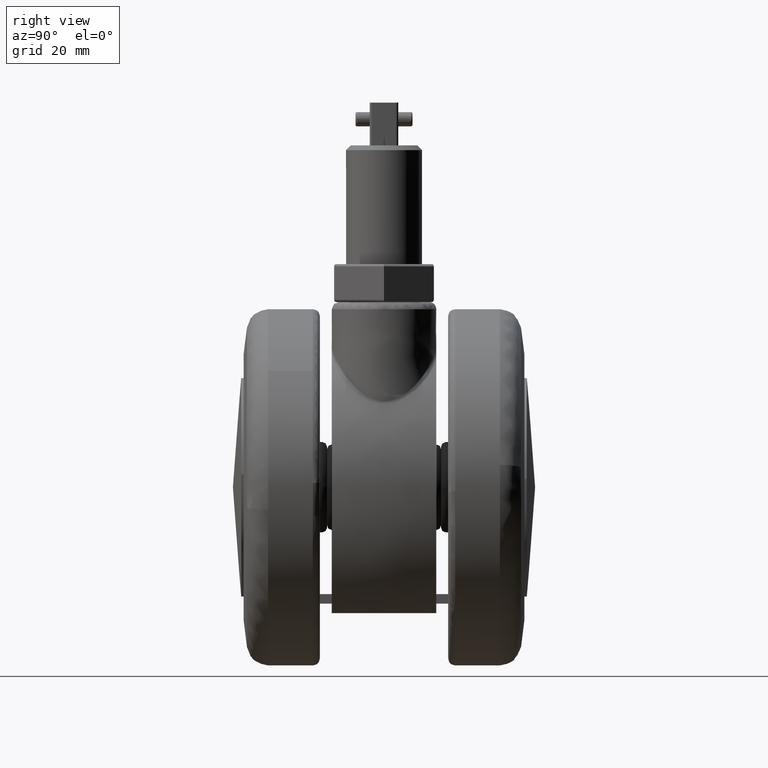
[diagram: clean part render]
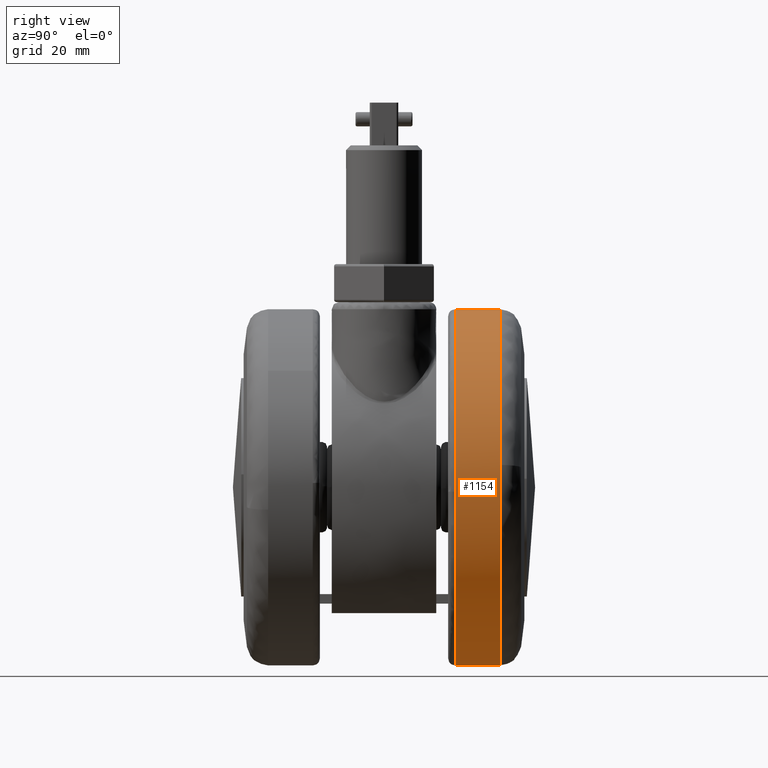
[diagram: same view with one face highlighted and labeled with its STEP entity id]
A machine part, right view. The second image highlights one B-rep face of the part: STEP entity #1154.
In plain terms, the highlighted face is a freeform B-spline surface patch.
Its self-contained STEP definition (entity closure, byte-faithful):
#988=CARTESIAN_POINT('',(-26.874411458421022,24.634318375222875,-26.153699714638627));
#989=CARTESIAN_POINT('',(-26.125903808977434,24.634318375222879,-26.922833824550551));
#990=CARTESIAN_POINT('',(-25.334632785587250,24.634318375222868,-27.647900130379639));
#991=CARTESIAN_POINT('',(2.313267344792394,24.634318375222890,-52.982532915966900));
#992=CARTESIAN_POINT('',(27.647900130379639,24.634318375222868,-25.334632785587250));
#993=CARTESIAN_POINT('',(52.982532915966900,24.634318375222861,2.313267344792394));
#994=CARTESIAN_POINT('',(25.334632785587250,24.634318375222851,27.647900130379639));
#995=CARTESIAN_POINT('',(-2.313267344792394,24.634318375222833,52.982532915966900));
#996=CARTESIAN_POINT('',(-27.647900130379639,24.634318375222851,25.334632785587250));
#997=CARTESIAN_POINT('',(-26.874411458421022,14.759142034843601,-26.153699714638627));
#998=CARTESIAN_POINT('',(-26.125903808977434,14.759142034843601,-26.922833824550562));
#999=CARTESIAN_POINT('',(-25.334632785587250,14.759142034843601,-27.647900130379650));
#1000=CARTESIAN_POINT('',(2.313267344792394,14.759142034843599,-52.982532915966900));
#1001=CARTESIAN_POINT('',(27.647900130379639,14.759142034843601,-25.334632785587250));
#1002=CARTESIAN_POINT('',(52.982532915966900,14.759142034843586,2.313267344792391));
#1003=CARTESIAN_POINT('',(25.334632785587250,14.759142034843579,27.647900130379639));
#1004=CARTESIAN_POINT('',(-2.313267344792394,14.759142034843570,52.982532915966878));
#1005=CARTESIAN_POINT('',(-27.647900130379639,14.759142034843579,25.334632785587250));
#1013=(BOUNDED_SURFACE()B_SPLINE_SURFACE(2,1,((#988,#997),(#989,#998),(#990,#999),(#991,#1000),(#992,#1001),(#993,#1002),(#994,#1003),(#995,#1004),(#996,#1005)),.UNSPECIFIED.,.F.,.F.,.U.)B_SPLINE_SURFACE_WITH_KNOTS((3,2,2,2,3),(2,2),(0.0,2.485281374238573,64.617315730202819,126.749350086167100,188.881384442131290),(0.0,9.875176340379278),.UNSPECIFIED.)GEOMETRIC_REPRESENTATION_ITEM()RATIONAL_B_SPLINE_SURFACE(((0.977505800795127,0.977505800795127),(0.988284271247462,0.988284271247462),(1.0,1.0),(0.707106781186548,0.707106781186548),(1.0,1.0),(0.707106781186548,0.707106781186548),(1.0,1.0),(0.707106781186548,0.707106781186548),(1.0,1.0)))REPRESENTATION_ITEM('')SURFACE());
#1014=CARTESIAN_POINT('',(0.0,15.0,-37.499999999999993));
#1015=VERTEX_POINT('',#1014);
#1016=CARTESIAN_POINT('',(-26.874411985650529,14.999999999999980,-26.153699172880341));
#1017=VERTEX_POINT('',#1016);
#1018=CARTESIAN_POINT('',(0.0,15.0,-37.499999999999993));
#1019=CARTESIAN_POINT('',(-15.832394517610302,15.000000000000005,-37.500000000000000));
#1020=CARTESIAN_POINT('',(-26.874411985650529,14.999999999999986,-26.153699172880344));
#1028=(BOUNDED_CURVE()B_SPLINE_CURVE(2,(#1018,#1019,#1020),.UNSPECIFIED.,.F.,.U.)B_SPLINE_CURVE_WITH_KNOTS((3,3),(0.500000000000000,0.627050653944054),.UNSPECIFIED.)CURVE()GEOMETRIC_REPRESENTATION_ITEM()RATIONAL_B_SPLINE_CURVE((1.0,0.851150900055888,0.853592804006842))REPRESENTATION_ITEM(''));
#1029=EDGE_CURVE('',#1015,#1017,#1028,.T.);
#1030=ORIENTED_EDGE('',*,*,#1029,.T.);
#1031=CARTESIAN_POINT('',(-26.874412072060789,24.399335000027630,-26.153699084073480));
#1032=VERTEX_POINT('',#1031);
#1033=CARTESIAN_POINT('',(-26.874412072060789,24.399335000027630,-26.153699084073480));
#1034=CARTESIAN_POINT('',(-26.874411985650529,14.999999999999980,-26.153699172880341));
#1035=QUASI_UNIFORM_CURVE('',1,(#1033,#1034),.UNSPECIFIED.,.F.,.U.);
#1036=EDGE_CURVE('',#1032,#1017,#1035,.T.);
#1037=ORIENTED_EDGE('',*,*,#1036,.F.);
#1038=CARTESIAN_POINT('',(0.0,24.399334999999951,-37.499999999999993));
#1039=VERTEX_POINT('',#1038);
#1040=CARTESIAN_POINT('',(0.0,24.399334999999951,-37.499999999999993));
#1041=CARTESIAN_POINT('',(-15.832394663589286,24.399334999999944,-37.499999999999993));
#1042=CARTESIAN_POINT('',(-26.874412072060789,24.399335000027634,-26.153699084073480));
#1050=(BOUNDED_CURVE()B_SPLINE_CURVE(2,(#1040,#1041,#1042),.UNSPECIFIED.,.F.,.U.)B_SPLINE_CURVE_WITH_KNOTS((3,3),(0.500000000000000,0.627050654941128),.UNSPECIFIED.)CURVE()GEOMETRIC_REPRESENTATION_ITEM()RATIONAL_B_SPLINE_CURVE((1.0,0.851150898887743,0.853592804045169))REPRESENTATION_ITEM(''));
#1051=EDGE_CURVE('',#1039,#1032,#1050,.T.);
#1052=ORIENTED_EDGE('',*,*,#1051,.F.);
#1053=CARTESIAN_POINT('',(37.204301299279997,24.399335000079990,4.699996258763650));
#1054=VERTEX_POINT('',#1053);
#1055=CARTESIAN_POINT('',(37.204301299279997,24.399335000079986,4.699996258763650));
#1056=CARTESIAN_POINT('',(37.499999999999993,24.399334999999947,2.359300022115328));
#1057=CARTESIAN_POINT('',(37.500000000000000,24.399334999999951,8.963874E-015));
#1058=CARTESIAN_POINT('',(37.500000000000000,24.399334999999944,-37.500000000000000));
#1059=CARTESIAN_POINT('',(0.0,24.399334999999951,-37.499999999999993));
#1067=(BOUNDED_CURVE()B_SPLINE_CURVE(2,(#1055,#1056,#1057,#1058,#1059),.UNSPECIFIED.,.F.,.U.)B_SPLINE_CURVE_WITH_KNOTS((3,2,3),(0.228321256480619,0.250000000000000,0.500000000000000),.UNSPECIFIED.)CURVE()GEOMETRIC_REPRESENTATION_ITEM()RATIONAL_B_SPLINE_CURVE((0.953608357590138,0.974601772123110,1.0,0.707106781186547,1.0))REPRESENTATION_ITEM(''));
#1068=EDGE_CURVE('',#1054,#1039,#1067,.T.);
#1069=ORIENTED_EDGE('',*,*,#1068,.F.);
#1070=CARTESIAN_POINT('',(0.0,24.399334999999951,37.500000000000007));
#1071=VERTEX_POINT('',#1070);
#1072=CARTESIAN_POINT('',(0.0,24.399334999999951,37.500000000000007));
#1073=CARTESIAN_POINT('',(33.060697213436477,24.399334999999951,37.500000000000014));
#1074=CARTESIAN_POINT('',(37.204301299279997,24.399335000079990,4.699996258763650));
#1082=(BOUNDED_CURVE()B_SPLINE_CURVE(2,(#1072,#1073,#1074),.UNSPECIFIED.,.F.,.U.)B_SPLINE_CURVE_WITH_KNOTS((3,3),(0.0,0.228321256480620),.UNSPECIFIED.)CURVE()GEOMETRIC_REPRESENTATION_ITEM()RATIONAL_B_SPLINE_CURVE((1.0,0.732505009063438,0.953608357590138))REPRESENTATION_ITEM(''));
#1083=EDGE_CURVE('',#1071,#1054,#1082,.T.);
#1084=ORIENTED_EDGE('',*,*,#1083,.F.);
#1085=CARTESIAN_POINT('',(-27.647900846389081,24.399334999999951,25.334632004200039));
#1086=VERTEX_POINT('',#1085);
#1087=CARTESIAN_POINT('',(-27.647900846389099,24.399334999999944,25.334632004200046));
#1088=CARTESIAN_POINT('',(-16.500395540954052,24.399334999999954,37.500000000000007));
#1089=CARTESIAN_POINT('',(0.0,24.399334999999951,37.500000000000007));
#1097=(BOUNDED_CURVE()B_SPLINE_CURVE(2,(#1087,#1088,#1089),.UNSPECIFIED.,.F.,.U.)B_SPLINE_CURVE_WITH_KNOTS((3,3),(0.868415204817622,1.0),.UNSPECIFIED.)CURVE()GEOMETRIC_REPRESENTATION_ITEM()RATIONAL_B_SPLINE_CURVE((0.853959781364576,0.845838823168498,1.0))REPRESENTATION_ITEM(''));
#1098=EDGE_CURVE('',#1086,#1071,#1097,.T.);
#1099=ORIENTED_EDGE('',*,*,#1098,.F.);
#1100=CARTESIAN_POINT('',(-27.647902177363509,14.999999998124821,25.334630551691131));
#1101=VERTEX_POINT('',#1100);
#1102=CARTESIAN_POINT('',(-27.647900846389081,24.399334999999951,25.334632004200039));
#1103=CARTESIAN_POINT('',(-27.647902177363509,14.999999998124821,25.334630551691131));
#1104=QUASI_UNIFORM_CURVE('',1,(#1102,#1103),.UNSPECIFIED.,.F.,.U.);
#1105=EDGE_CURVE('',#1086,#1101,#1104,.T.);
#1106=ORIENTED_EDGE('',*,*,#1105,.T.);
#1107=CARTESIAN_POINT('',(0.0,15.0,37.500000000000007));
#1108=VERTEX_POINT('',#1107);
#1109=CARTESIAN_POINT('',(-27.647902177363509,14.999999998124821,25.334630551691138));
#1110=CARTESIAN_POINT('',(-16.500396716711517,15.000000000000005,37.500000000000000));
#1111=CARTESIAN_POINT('',(0.0,15.0,37.500000000000007));
#1119=(BOUNDED_CURVE()B_SPLINE_CURVE(2,(#1109,#1110,#1111),.UNSPECIFIED.,.F.,.U.)B_SPLINE_CURVE_WITH_KNOTS((3,3),(0.868415196886828,1.0),.UNSPECIFIED.)CURVE()GEOMETRIC_REPRESENTATION_ITEM()RATIONAL_B_SPLINE_CURVE((0.853959782343499,0.845838813876994,1.0))REPRESENTATION_ITEM(''));
#1120=EDGE_CURVE('',#1101,#1108,#1119,.T.);
#1121=ORIENTED_EDGE('',*,*,#1120,.T.);
#1122=CARTESIAN_POINT('',(37.488157098122983,14.999999994365041,-0.942378579155182));
#1123=VERTEX_POINT('',#1122);
#1124=CARTESIAN_POINT('',(0.0,15.0,37.500000000000007));
#1125=CARTESIAN_POINT('',(37.500000000000000,14.999999999999996,37.500000000000000));
#1126=CARTESIAN_POINT('',(37.500000000000000,15.0,5.510729E-015));
#1127=CARTESIAN_POINT('',(37.499999999999993,15.000000000000004,-0.471263704656789));
#1128=CARTESIAN_POINT('',(37.488157098122976,14.999999994365037,-0.942378579155182));
#1136=(BOUNDED_CURVE()B_SPLINE_CURVE(2,(#1124,#1125,#1126,#1127,#1128),.UNSPECIFIED.,.F.,.U.)B_SPLINE_CURVE_WITH_KNOTS((3,2,3),(0.0,0.250000000000000,0.254420108230473),.UNSPECIFIED.)CURVE()GEOMETRIC_REPRESENTATION_ITEM()RATIONAL_B_SPLINE_CURVE((1.0,0.707106781186547,1.0,0.994821521091492,0.989826157680942))REPRESENTATION_ITEM(''));
#1137=EDGE_CURVE('',#1108,#1123,#1136,.T.);
#1138=ORIENTED_EDGE('',*,*,#1137,.T.);
#1139=CARTESIAN_POINT('',(37.488157098122983,14.999999994365034,-0.942378579155182));
#1140=CARTESIAN_POINT('',(36.569170356715730,14.999999999999996,-37.499999999999993));
#1141=CARTESIAN_POINT('',(0.0,15.0,-37.499999999999993));
#1149=(BOUNDED_CURVE()B_SPLINE_CURVE(2,(#1139,#1140,#1141),.UNSPECIFIED.,.F.,.U.)B_SPLINE_CURVE_WITH_KNOTS((3,3),(0.254420108230473,0.500000000000000),.UNSPECIFIED.)CURVE()GEOMETRIC_REPRESENTATION_ITEM()RATIONAL_B_SPLINE_CURVE((0.989826157680942,0.712285260095056,1.0))REPRESENTATION_ITEM(''));
#1150=EDGE_CURVE('',#1123,#1015,#1149,.T.);
#1151=ORIENTED_EDGE('',*,*,#1150,.T.);
#1152=EDGE_LOOP('',(#1030,#1037,#1052,#1069,#1084,#1099,#1106,#1121,#1138,#1151));
#1153=FACE_OUTER_BOUND('',#1152,.T.);
#1154=ADVANCED_FACE('',(#1153),#1013,.T.);